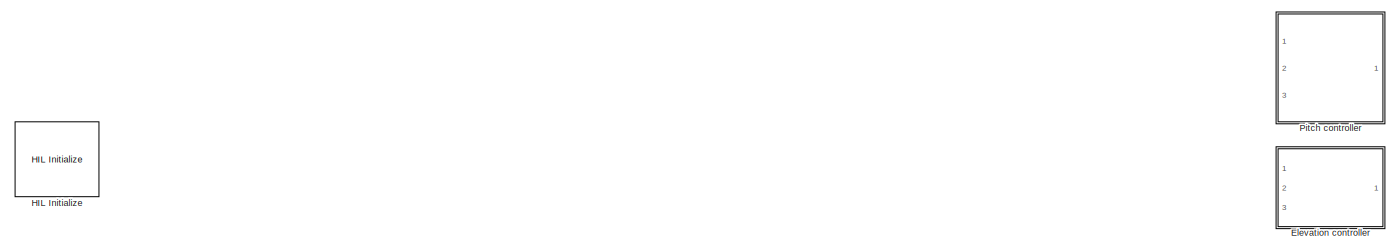
[diagram: root canvas - part 1/3, top right region]
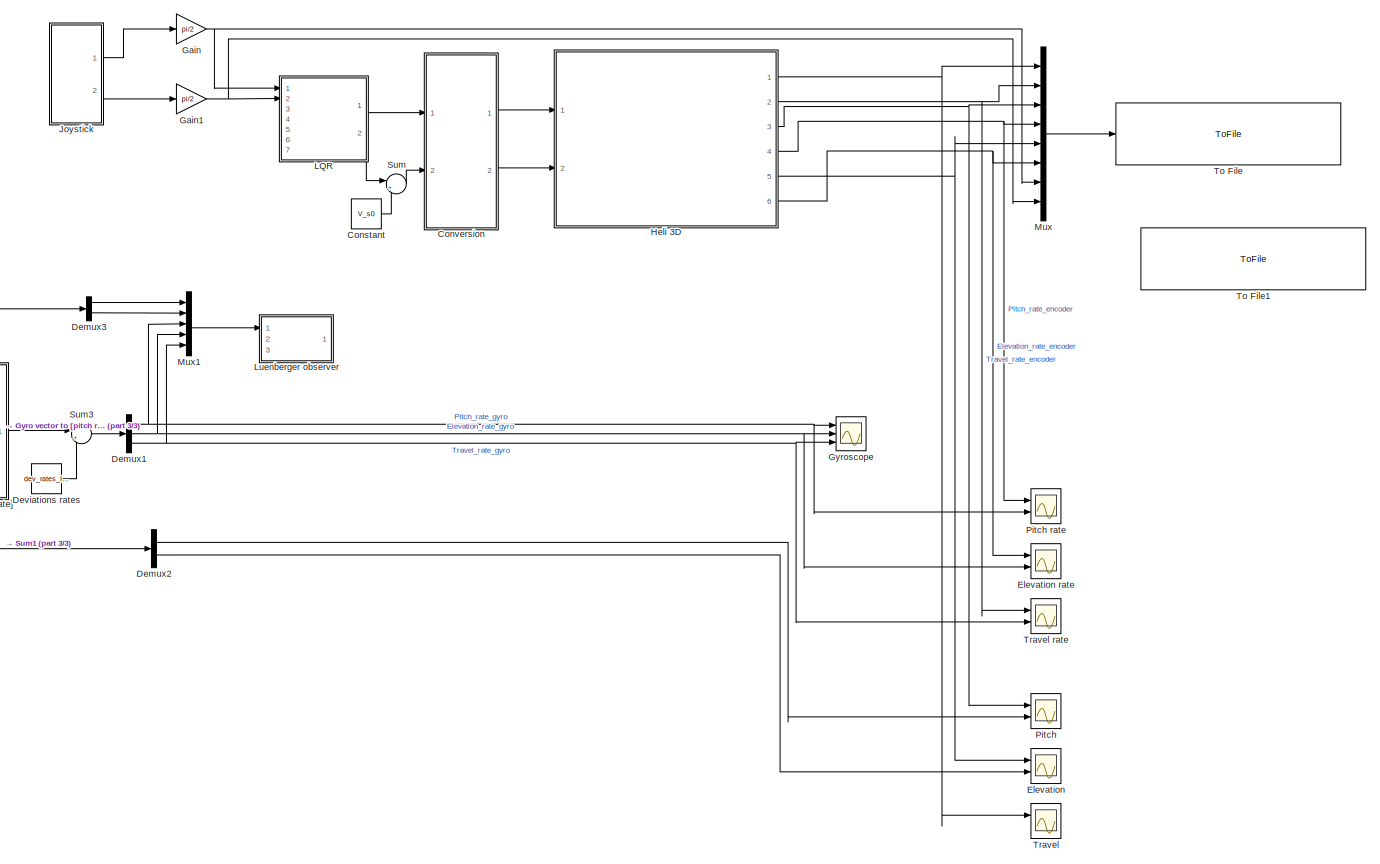
[diagram: root canvas - part 2/3, central region]
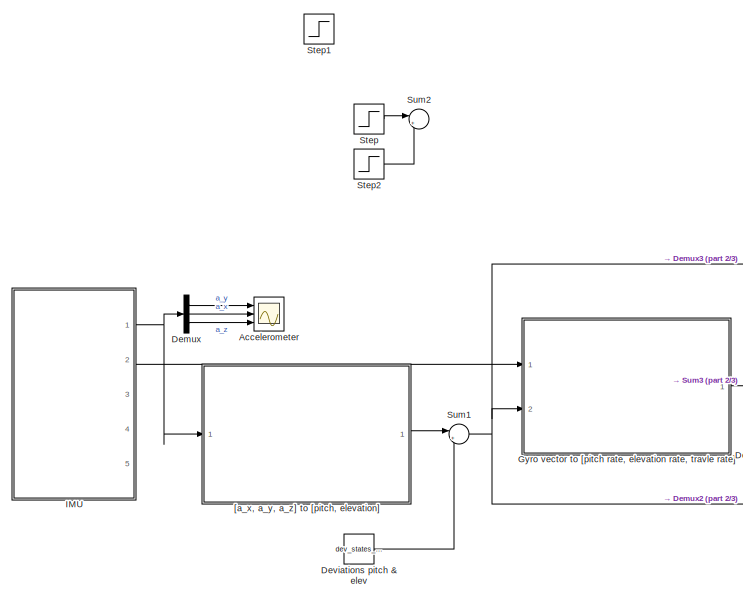
[diagram: root canvas - part 3/3, middle left region]
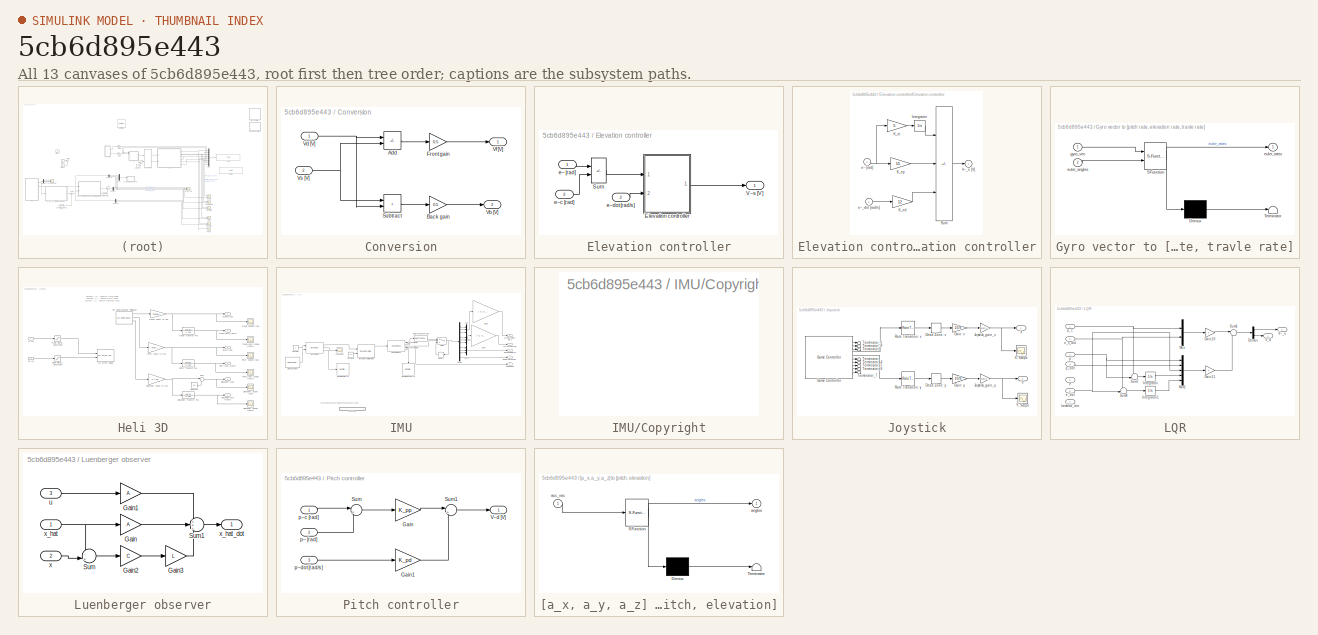
[diagram: thumbnail index - all 13 canvases of the model, root first then tree order]
MODEL slx_5cb6d895e443
KIND model
CONFIG AbsTol = auto
CONFIG EnableMultiTasking = on
CONFIG FixedStep = 0.002
CONFIG MaxStep = auto
CONFIG MinStep = auto
CONFIG PostLoadFcn = qc_set_target_type(getConfigSet(bdroot, 'QUARC Default Target Configuration'));
CONFIG RelTol = 1e-3
CONFIG SampleTimeConstraint = Unconstrained
CONFIG SolverName = ode1
CONFIG StartTime = 0.0
CONFIG StopTime = inf
BLOCK [Scope] Accelerometer
  Floating = off
  NumInputPorts = 3
  Ports = [3]
  ScopeSpecificationString = Simulink.scopes.TimeScopeBlockCfg('CurrentConfiguration', extmgr.ConfigurationSet(extmgr.Configuration('Core','General UI',true),extmgr.Configuration('Core','Source UI',true),extmgr.Configuration('Sources','WiredSimulink',true,'DataLoggingVariableName','ScopeData2'),extmgr.Configuration('Visuals','Time Domain',true,'TimeAxisLabels','All','SerializedDisplays',{struct('MinYLimReal','-6','MaxYLimReal...<+2778ch>
BLOCK [Constant] Constant
  Value = V_s0
BLOCK [SubSystem] Conversion
  Ports = [2, 2]
  RequestExecContextInheritance = off
BLOCK [Sum] Conversion/Add
  IconShape = rectangular
  Inputs = -+
  Ports = [2, 1]
BLOCK [Gain] Conversion/Back gain
  Gain = 0.5
BLOCK [Gain] Conversion/Front gain
  Gain = 0.5
BLOCK [Sum] Conversion/Subtract
  IconShape = rectangular
  Ports = [2, 1]
BLOCK [Outport] Conversion/Vb [V]
  Port = 2
BLOCK [Inport] Conversion/Vd [V]
BLOCK [Outport] Conversion/Vf [V]
BLOCK [Inport] Conversion/Vs [V]
  Port = 2
BLOCK [Demux] Demux
  Outputs = 3
  Ports = [1, 3]
BLOCK [Demux] Demux1
  Outputs = 3
  Ports = [1, 3]
BLOCK [Demux] Demux2
  Outputs = 2
  Ports = [1, 2]
BLOCK [Demux] Demux3
  Outputs = 2
  Ports = [1, 2]
BLOCK [Constant] Deviations pitch & elev
  Value = dev_states_IMU
  VectorParams1D = off
BLOCK [Constant] Deviations rates
  Value = dev_rates_IMU
  VectorParams1D = off
BLOCK [Scope] Elevation
  Floating = off
  NumInputPorts = 2
  Ports = [2]
  ScopeSpecificationString = Simulink.scopes.TimeScopeBlockCfg('CurrentConfiguration', extmgr.ConfigurationSet(extmgr.Configuration('Core','General UI',true),extmgr.Configuration('Core','Source UI',true),extmgr.Configuration('Sources','WiredSimulink',true,'DataLoggingVariableName','ScopeData3'),extmgr.Configuration('Visuals','Time Domain',true,'TimeAxisLabels','All','SerializedDisplays',{struct('MinYLimReal','-0.6','MaxYLimRe...<+1533ch>
BLOCK [SubSystem] Elevation controller
  Ports = [3, 1]
  RequestExecContextInheritance = off
BLOCK [SubSystem] Elevation controller/Elevation controller
  Ports = [2, 1]
  RequestExecContextInheritance = off
BLOCK [Integrator] Elevation controller/Elevation controller/Integrator
  LimitOutput = on
  Ports = [1, 1]
BLOCK [Gain] Elevation controller/Elevation controller/K_ed
  Gain = 12
  OutDataTypeStr = Inherit: Same as input
  ParamDataTypeStr = Inherit: Same as input
  SaturateOnIntegerOverflow = on
BLOCK [Gain] Elevation controller/Elevation controller/K_ei
  Gain = 5
  OutDataTypeStr = Inherit: Same as input
  ParamDataTypeStr = Inherit: Same as input
  SaturateOnIntegerOverflow = on
BLOCK [Gain] Elevation controller/Elevation controller/K_ep
  Gain = 15
  OutDataTypeStr = Inherit: Same as input
  ParamDataTypeStr = Inherit: Same as input
  SaturateOnIntegerOverflow = on
BLOCK [Sum] Elevation controller/Elevation controller/Sum
  IconShape = rectangular
  InputSameDT = on
  Inputs = ++-
  OutDataTypeStr = Inherit: Same as first input
  Ports = [3, 1]
  SaturateOnIntegerOverflow = on
BLOCK [Outport] Elevation controller/Elevation controller/V~_s [V]
  InitialOutput = 0
BLOCK [Inport] Elevation controller/Elevation controller/e~ [rad]
BLOCK [Inport] Elevation controller/Elevation controller/e~_dot [rad//s]
  Port = 2
BLOCK [Sum] Elevation controller/Sum
  IconShape = rectangular
  InputSameDT = on
  Inputs = -+
  OutDataTypeStr = Inherit: Same as first input
  Ports = [2, 1]
  SaturateOnIntegerOverflow = on
BLOCK [Outport] Elevation controller/V~s [V]
  InitialOutput = 0
BLOCK [Inport] Elevation controller/e~ [rad]
BLOCK [Inport] Elevation controller/e~c [rad]
  Port = 3
BLOCK [Inport] Elevation controller/e~dot [rad//s]
  Port = 2
BLOCK [Scope] Elevation rate
  Floating = off
  NumInputPorts = 2
  Ports = [2]
  ScopeSpecificationString = Simulink.scopes.TimeScopeBlockCfg('CurrentConfiguration', extmgr.ConfigurationSet(extmgr.Configuration('Core','General UI',true),extmgr.Configuration('Core','Source UI',true),extmgr.Configuration('Sources','WiredSimulink',true,'DataLoggingVariableName','ScopeData5'),extmgr.Configuration('Visuals','Time Domain',true,'TimeAxisLabels','All','SerializedDisplays',{struct('MinYLimReal','-0.1','MaxYLimRe...<+1581ch>
BLOCK [Gain] Gain
  Gain = pi/2
BLOCK [Gain] Gain1
  Gain = pi/2
BLOCK [SubSystem] Gyro vector to [pitch rate, elevation rate, travle rate]
  ErrorFcn = Stateflow.Translate.translate
  PermitHierarchicalResolution = ExplicitOnly
  Ports = [2, 1]
  RequestExecContextInheritance = off
  SFBlockType = MATLAB Function
  TreatAsAtomicUnit = on
BLOCK [Demux] Gyro vector to [pitch rate, elevation rate, travle rate]/ Demux 
  Outputs = 1
  Ports = [1, 1]
BLOCK [S-Function] Gyro vector to [pitch rate, elevation rate, travle rate]/ SFunction 
  EnableBusSupport = on
  FunctionName = sf_sfun
  PortCounts = [2 2]
  Ports = [2, 2]
  SFcnIsStateOwnerBlock = off
  SFunctionDeploymentMode = off
  Tag = Stateflow S-Function 2
BLOCK [Terminator] Gyro vector to [pitch rate, elevation rate, travle rate]/ Terminator 
BLOCK [Inport] Gyro vector to [pitch rate, elevation rate, travle rate]/euler_angles
  Port = 2
BLOCK [Outport] Gyro vector to [pitch rate, elevation rate, travle rate]/euler_rates
BLOCK [Inport] Gyro vector to [pitch rate, elevation rate, travle rate]/gyro_vec
BLOCK [Scope] Gyroscope
  Floating = off
  NumInputPorts = 3
  Ports = [3]
  ScopeSpecificationString = Simulink.scopes.TimeScopeBlockCfg('CurrentConfiguration', extmgr.ConfigurationSet(extmgr.Configuration('Core','General UI',true),extmgr.Configuration('Core','Source UI',true),extmgr.Configuration('Sources','WiredSimulink',true,'DataLoggingVariableName','ScopeData1'),extmgr.Configuration('Visuals','Time Domain',true,'TimeAxisLabels','All','SerializedDisplays',{struct('MinYLimReal','-2.66315','MaxYL...<+2910ch>
BLOCK [Reference] HIL Initialize  REF=quarc_library/Data Acquisition/Generic/Configuration/HIL Initialize
  AttributesFormatString = %<object_name> (%<board_type>-%<board_number>)
  Ports = []
  Priority = -99
  SourceBlock = quarc_library/Data Acquisition/Generic/Configuration/HIL Initialize
  SourceProductName = QUARC Targets
  SourceType = HIL Initialize
  UserDataPersistent = on
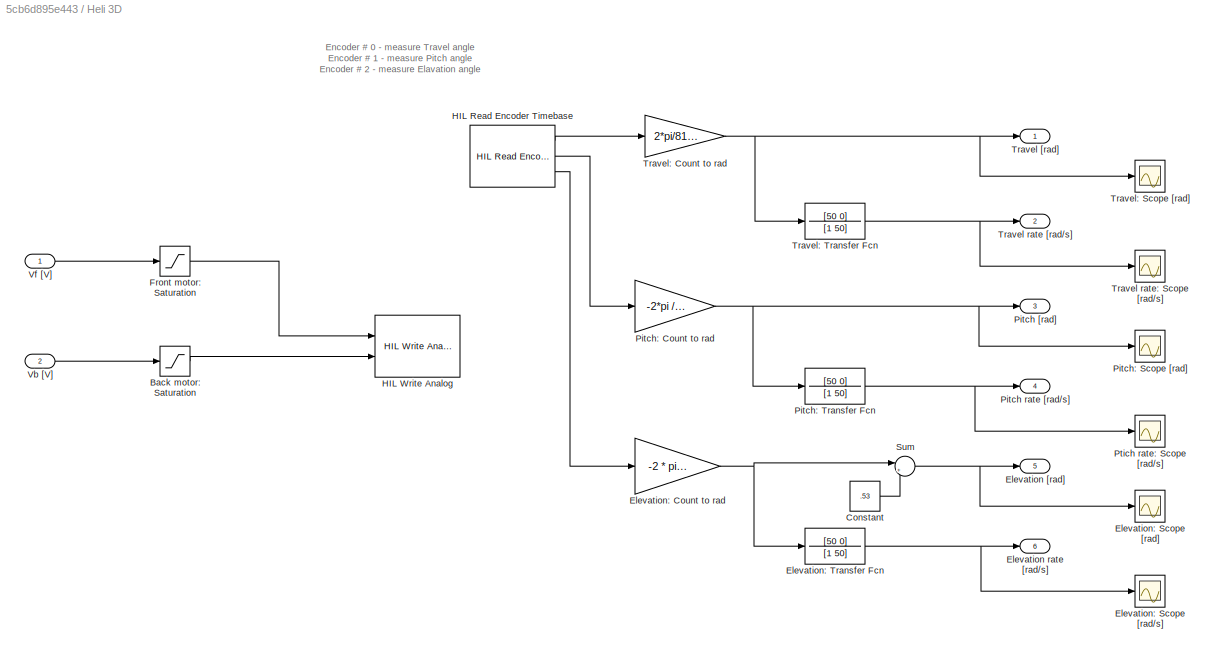
BLOCK [SubSystem] Heli 3D
  Ports = [2, 6]
  RequestExecContextInheritance = off
BLOCK [Saturate] Heli 3D/Back motor: Saturation
  LowerLimit = -5
  UpperLimit = 5
BLOCK [Constant] Heli 3D/Constant
  Value = .53
BLOCK [Outport] Heli 3D/Elevation [rad]
  Port = 5
BLOCK [Outport] Heli 3D/Elevation rate [rad//s]
  Port = 6
BLOCK [Gain] Heli 3D/Elevation: Count to rad
  Gain = -2 * pi /4096
BLOCK [Scope] Heli 3D/Elevation: Scope [rad//s]
  Floating = off
  NumInputPorts = 1
  Ports = [1]
  ScopeSpecificationString = C++SS(StrPVP('Location','[1236, 673, 1560, 912]'),StrPVP('Open','off'),MxPVP('AxesTitles',54,'struct(''axes1'',''%<SignalLabel>'')'),MxPVP('ScopeGraphics',57,'struct(''FigureColor'',''[0.5 0.5 0.5]'',''AxesColor'',''[0 0 0]'',''AxesTickColor'',''[1 1 1]'',''LineColors'',''[1 1 0;1 0 1;0 1 1;1 0 0;0 1 0;0 0 1]'',''LineStyles'',''-|-|-|-|-|-'',''LineWidths'',''[0.5 0.5 0.5 0.5 0.5 0.5]'',''MarkerSty...<+342ch>
BLOCK [Scope] Heli 3D/Elevation: Scope [rad]
  Floating = off
  NumInputPorts = 1
  Ports = [1]
  ScopeSpecificationString = Simulink.scopes.TimeScopeBlockCfg('CurrentConfiguration', extmgr.ConfigurationSet(extmgr.Configuration('Core','General UI',true),extmgr.Configuration('Core','Source UI',true),extmgr.Configuration('Sources','WiredSimulink',true,'DataLoggingVariableName','ScopeData12','DataLoggingSaveFormat','StructureWithTime','DataLoggingLimitDataPoints',true,'DataLoggingDecimation','1','DataLoggingDecimateData',t...<+1749ch>
BLOCK [TransferFcn] Heli 3D/Elevation: Transfer Fcn
  Denominator = [1 50]
  Numerator = [50 0]
BLOCK [Saturate] Heli 3D/Front motor: Saturation
  LowerLimit = -5
  UpperLimit = 5
BLOCK [Reference] Heli 3D/HIL Read Encoder Timebase  REF=quarc_library/Data Acquisition/Generic/Timebases/HIL Read Encoder
Timebase
  AttributesFormatString = (%<object_name>)
  Ports = [0, 3]
  SourceBlock = quarc_library/Data Acquisition/Generic/Timebases/HIL Read Encoder\nTimebase
  SourceProductName = QUARC Targets
  SourceType = HIL Read Encoder Timebase
  UserDataPersistent = on
BLOCK [Reference] Heli 3D/HIL Write Analog  REF=quarc_library/Data Acquisition/Generic/Immediate I//O/HIL Write Analog
  AttributesFormatString = (%<object_name>)
  Ports = [2]
  SourceBlock = quarc_library/Data Acquisition/Generic/Immediate I//O/HIL Write Analog
  SourceProductName = QUARC Targets
  SourceType = HIL Write Analog
  UserDataPersistent = on
BLOCK [Outport] Heli 3D/Pitch [rad]
  Port = 3
BLOCK [Outport] Heli 3D/Pitch rate [rad//s]
  Port = 4
BLOCK [Gain] Heli 3D/Pitch: Count to rad
  Gain = -2*pi /4096
  NameLocation = top
BLOCK [Scope] Heli 3D/Pitch: Scope [rad]
  Floating = off
  NumInputPorts = 1
  Ports = [1]
  ScopeSpecificationString = Simulink.scopes.TimeScopeBlockCfg('CurrentConfiguration', extmgr.ConfigurationSet(extmgr.Configuration('Core','General UI',true),extmgr.Configuration('Core','Source UI',true),extmgr.Configuration('Sources','WiredSimulink',true,'DataLoggingVariableName','ScopeData10','DataLoggingSaveFormat','StructureWithTime','DataLoggingLimitDataPoints',true,'DataLoggingDecimation','1','DataLoggingDecimateData',t...<+1769ch>
BLOCK [TransferFcn] Heli 3D/Pitch: Transfer Fcn
  Denominator = [1 50]
  Numerator = [50 0]
BLOCK [Scope] Heli 3D/Ptich rate: Scope [rad//s]
  Floating = off
  NumInputPorts = 1
  Ports = [1]
  ScopeSpecificationString = C++SS(StrPVP('Location','[1236, 673, 1560, 912]'),StrPVP('Open','off'),MxPVP('AxesTitles',54,'struct(''axes1'',''%<SignalLabel>'')'),MxPVP('ScopeGraphics',57,'struct(''FigureColor'',''[0.5 0.5 0.5]'',''AxesColor'',''[0 0 0]'',''AxesTickColor'',''[1 1 1]'',''LineColors'',''[1 1 0;1 0 1;0 1 1;1 0 0;0 1 0;0 0 1]'',''LineStyles'',''-|-|-|-|-|-'',''LineWidths'',''[0.5 0.5 0.5 0.5 0.5 0.5]'',''MarkerSty...<+342ch>
BLOCK [Sum] Heli 3D/Sum
  Inputs = |+-
  Ports = [2, 1]
BLOCK [Outport] Heli 3D/Travel [rad]
BLOCK [Outport] Heli 3D/Travel rate [rad//s]
  Port = 2
BLOCK [Scope] Heli 3D/Travel rate: Scope [rad//s]
  Floating = off
  NumInputPorts = 1
  Ports = [1]
  ScopeSpecificationString = Simulink.scopes.TimeScopeBlockCfg('CurrentConfiguration', extmgr.ConfigurationSet(extmgr.Configuration('Core','General UI',true),extmgr.Configuration('Core','Source UI',true),extmgr.Configuration('Sources','WiredSimulink',true,'DataLoggingVariableName','ScopeData9','DataLoggingSaveFormat','StructureWithTime','DataLoggingLimitDataPoints',true,'DataLoggingDecimation','1','DataLoggingDecimateData',tr...<+1694ch>
BLOCK [Gain] Heli 3D/Travel: Count to rad
  Gain = 2*pi/8192
  NameLocation = top
BLOCK [Scope] Heli 3D/Travel: Scope [rad]
  Floating = off
  NumInputPorts = 1
  Ports = [1]
  ScopeSpecificationString = Simulink.scopes.TimeScopeBlockCfg('CurrentConfiguration', extmgr.ConfigurationSet(extmgr.Configuration('Core','General UI',true),extmgr.Configuration('Core','Source UI',true),extmgr.Configuration('Sources','WiredSimulink',true,'DataLoggingVariableName','ScopeData8','DataLoggingSaveFormat','StructureWithTime','DataLoggingLimitDataPoints',true,'DataLoggingDecimation','1','DataLoggingDecimateData',tr...<+1698ch>
BLOCK [TransferFcn] Heli 3D/Travel: Transfer Fcn
  Denominator = [1 50]
  Numerator = [50 0]
BLOCK [Inport] Heli 3D/Vb [V]
  Port = 2
BLOCK [Inport] Heli 3D/Vf [V]
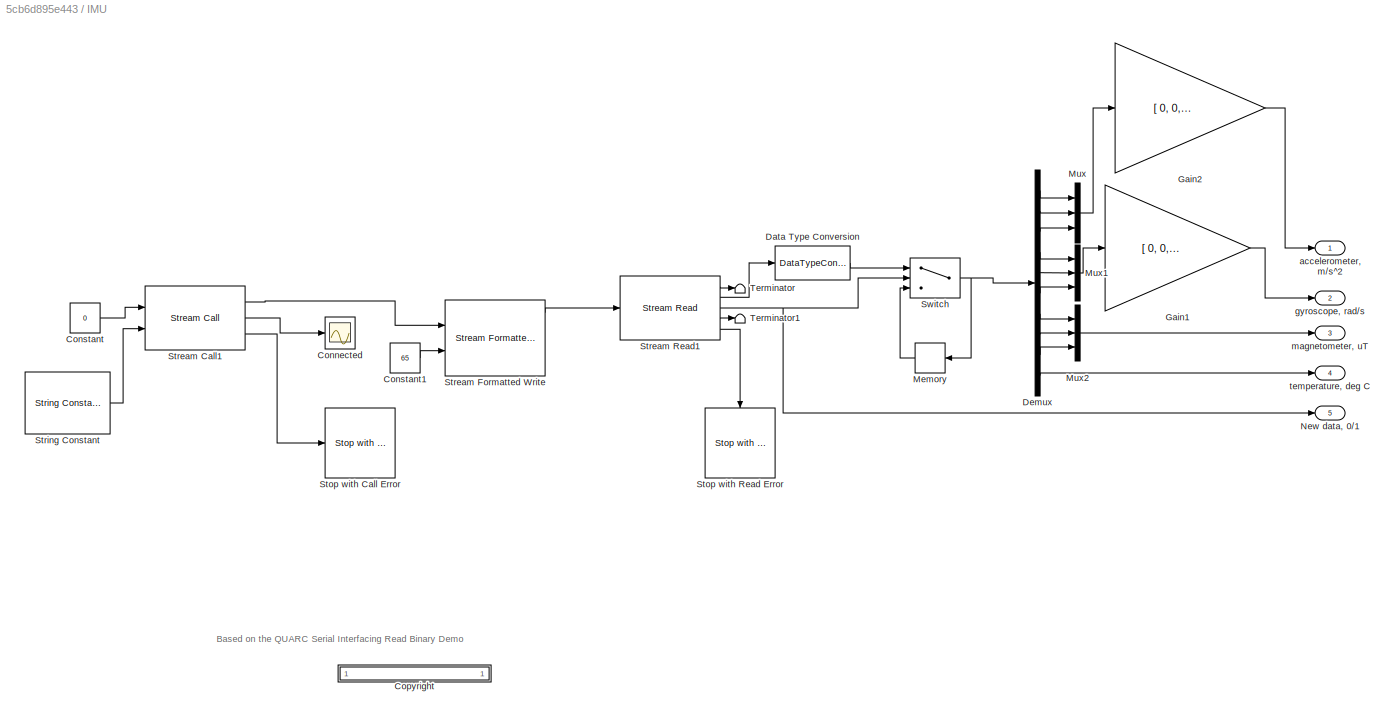
BLOCK [SubSystem] IMU
  Ports = [0, 5]
  RequestExecContextInheritance = off
BLOCK [Scope] IMU/Connected
  Floating = off
  NumInputPorts = 1
  Ports = [1]
  ScopeSpecificationString = Simulink.scopes.TimeScopeBlockCfg('CurrentConfiguration', extmgr.ConfigurationSet(extmgr.Configuration('Core','General UI',true),extmgr.Configuration('Core','Source UI',true),extmgr.Configuration('Sources','WiredSimulink',true,'DataLoggingSaveFormat','StructureWithTime','DataLoggingLimitDataPoints',true,'DataLoggingDecimation','1','DataLoggingDecimateData',true,'DataLoggingVariableName','ScopeData...<+909ch>
BLOCK [Constant] IMU/Constant
  Value = 0
BLOCK [Constant] IMU/Constant1
  Value = 65
BLOCK [SubSystem] IMU/<copyright redacted>
  OpenFcn = web('http://www.quanser.com/');
  Permissions = NoReadOrWrite
  PermitHierarchicalResolution = None
  Ports = []
  RequestExecContextInheritance = off
BLOCK [DataTypeConversion] IMU/Data Type Conversion
  OutDataTypeStr = double
  RndMeth = Floor
  SaturateOnIntegerOverflow = off
BLOCK [Demux] IMU/Demux
  Outputs = 10
  Ports = [1, 10]
BLOCK [Gain] IMU/Gain1
  Gain = [ 0, 0, 1; 0, 1, 0; -1, 0, 0]
  Multiplication = Matrix(K*u) (u vector)
BLOCK [Gain] IMU/Gain2
  Gain = [ 0, 0, 1; 0, 1, 0; -1, 0, 0]
  Multiplication = Matrix(K*u) (u vector)
BLOCK [Memory] IMU/Memory
  InitialCondition = [0 0 0 0 0 0 0 0 0 0]
  NameLocation = top
BLOCK [Mux] IMU/Mux
  DisplayOption = bar
  Inputs = 3
  Ports = [3, 1]
BLOCK [Mux] IMU/Mux1
  DisplayOption = bar
  Inputs = 3
  Ports = [3, 1]
BLOCK [Mux] IMU/Mux2
  DisplayOption = bar
  Inputs = 3
  Ports = [3, 1]
BLOCK [Outport] IMU/New data, 0//1
  Port = 5
BLOCK [Reference] IMU/Stop with Call Error  REF=quarc_library/Sinks/Error Handling/Stop with Error
  Ports = [1]
  SourceBlock = quarc_library/Sinks/Error Handling/Stop with Error
  SourceProductName = QUARC Targets
  SourceType = Stop with Error
BLOCK [Reference] IMU/Stop with Read Error  REF=quarc_library/Sinks/Error Handling/Stop with Error
  NameLocation = left
  Ports = [1]
  SourceBlock = quarc_library/Sinks/Error Handling/Stop with Error
  SourceProductName = QUARC Targets
  SourceType = Stop with Error
BLOCK [Reference] IMU/Stream Call1  REF=quarc_library/Communications/Intermediate/Stream Call
  Ports = [2, 3]
  SourceBlock = quarc_library/Communications/Intermediate/Stream Call
  SourceProductName = QUARC Targets
  SourceType = Stream Call
BLOCK [Reference] IMU/Stream Formatted Write  REF=quarc_library/Communications/Intermediate/Stream Formatted
Write
  Ports = [2, 5]
  SourceBlock = quarc_library/Communications/Intermediate/Stream Formatted\nWrite
  SourceProductName = QUARC Targets
  SourceType = Stream Formatted Write
BLOCK [Reference] IMU/Stream Read1  REF=quarc_library/Communications/Intermediate/Stream Read
  Ports = [1, 5]
  SourceBlock = quarc_library/Communications/Intermediate/Stream Read
  SourceProductName = QUARC Targets
  SourceType = Stream Read
BLOCK [Reference] IMU/String Constant  REF=quarc_library/Strings/String Constant
  AttributesFormatString = "serial://IMU:4?baud=115200,word=8,parity=none,stop=1"
  Ports = [0, 1]
  SourceBlock = quarc_library/Strings/String Constant
  SourceProductName = QUARC Targets
  SourceType = String Constant
BLOCK [Switch] IMU/Switch
  Criteria = u2 > Threshold
  InputSameDT = off
  SaturateOnIntegerOverflow = off
BLOCK [Terminator] IMU/Terminator
BLOCK [Terminator] IMU/Terminator1
BLOCK [Outport] IMU/accelerometer, m//s^2
BLOCK [Outport] IMU/gyroscope, rad//s
  Port = 2
BLOCK [Outport] IMU/magnetometer, uT
  Port = 3
BLOCK [Outport] IMU/temperature, deg C
  Port = 4
BLOCK [SubSystem] Joystick
  Ports = [0, 2]
  RequestExecContextInheritance = off
BLOCK [DeadZone] Joystick/Dead Zone: x
  LowerValue = -0.1
  UpperValue = 0.1
BLOCK [DeadZone] Joystick/Dead Zone: y
  LowerValue = -0.1
  UpperValue = 0.1
BLOCK [Gain] Joystick/Gain: x
  Gain = 10/9
BLOCK [Gain] Joystick/Gain: y
  Gain = 10/9
BLOCK [Reference] Joystick/Game Controller  REF=quarc_library/Devices/Peripherals/Target/Game Controller
  Ports = [0, 10]
  SourceBlock = quarc_library/Devices/Peripherals/Target/Game Controller
  SourceProductName = QUARC Targets
  SourceType = Game Controller
BLOCK [Gain] Joystick/Joystick_gain_x
  Gain = Joystick_gain_x
BLOCK [Gain] Joystick/Joystick_gain_y
  Gain = Joystick_gain_y
BLOCK [RateTransition] Joystick/Rate Transition: x
BLOCK [RateTransition] Joystick/Rate Transition: y
BLOCK [Terminator] Joystick/Terminator
BLOCK [Terminator] Joystick/Terminator1
BLOCK [Terminator] Joystick/Terminator_1
BLOCK [Terminator] Joystick/Terminator_2
BLOCK [Terminator] Joystick/Terminator_4
BLOCK [Terminator] Joystick/Terminator_5
BLOCK [Terminator] Joystick/Terminator_6
BLOCK [Terminator] Joystick/Terminator_7
BLOCK [Outport] Joystick/X
BLOCK [Scope] Joystick/X: Scope
  Floating = off
  NumInputPorts = 1
  Ports = [1]
  ScopeSpecificationString = C++SS(StrPVP('Location','[894, 60, 1218, 301]'),StrPVP('Open','off'),StrPVP('ZoomMode','yonly'),MxPVP('AxesTitles',54,'struct(''axes1'',''%<SignalLabel>'')'),MxPVP('ScopeGraphics',57,'struct(''FigureColor'',''[0.5 0.5 0.5]'',''AxesColor'',''[0 0 0]'',''AxesTickColor'',''[1 1 1]'',''LineColors'',''[1 1 0;1 0 1;0 1 1;1 0 0;0 1 0;0 0 1]'',''LineStyles'',''-|-|-|-|-|-'',''LineWidths'',''[0.5 0.5 0.5 0...<+364ch>
BLOCK [Outport] Joystick/Y
  Port = 2
BLOCK [Scope] Joystick/Y: Scope
  Floating = off
  NumInputPorts = 1
  Ports = [1]
  ScopeSpecificationString = C++SS(StrPVP('Location','[894, 368, 1218, 604]'),StrPVP('Open','off'),MxPVP('AxesTitles',54,'struct(''axes1'',''%<SignalLabel>'')'),MxPVP('ScopeGraphics',57,'struct(''FigureColor'',''[0.5 0.5 0.5]'',''AxesColor'',''[0 0 0]'',''AxesTickColor'',''[1 1 1]'',''LineColors'',''[1 1 0;1 0 1;0 1 1;1 0 0;0 1 0;0 0 1]'',''LineStyles'',''-|-|-|-|-|-'',''LineWidths'',''[0.5 0.5 0.5 0.5 0.5 0.5]'',''MarkerStyl...<+340ch>
BLOCK [SubSystem] LQR
  Ports = [7, 2]
  RequestExecContextInheritance = off
BLOCK [Demux] LQR/Demux
  Outputs = 2
  Ports = [1, 2]
BLOCK [Gain] LQR/Gain10
  Gain = F
  Multiplication = Matrix(K*u)
BLOCK [Gain] LQR/Gain11
  Gain = K
  Multiplication = Matrix(K*u)
BLOCK [Integrator] LQR/Integrator
  Ports = [1, 1]
BLOCK [Integrator] LQR/Integrator1
  Ports = [1, 1]
BLOCK [Mux] LQR/Mux
  DisplayOption = bar
  Inputs = 2
  Ports = [2, 1]
BLOCK [Mux] LQR/Mux1
  DisplayOption = bar
  Inputs = 5
  Ports = [5, 1]
BLOCK [Sum] LQR/Sum6
  Inputs = |+-
  Ports = [2, 1]
BLOCK [Sum] LQR/Sum7
  Inputs = +-|
  Ports = [2, 1]
BLOCK [Sum] LQR/Sum8
  Inputs = +-|
  Ports = [2, 1]
BLOCK [Outport] LQR/V_d
BLOCK [Outport] LQR/V~_s
  Port = 2
BLOCK [Inport] LQR/e
  Port = 5
BLOCK [Inport] LQR/e_c_dot
  Port = 2
BLOCK [Inport] LQR/e_dot
  Port = 6
BLOCK [Inport] LQR/lambda_dot
  Port = 7
BLOCK [Inport] LQR/p
  Port = 3
BLOCK [Inport] LQR/p_c
BLOCK [Inport] LQR/p_dot
  Port = 4
BLOCK [SubSystem] Luenberger observer
  Ports = [3, 1]
  RequestExecContextInheritance = off
BLOCK [Gain] Luenberger observer/Gain
  Gain = A
  Multiplication = Matrix(K*u)
BLOCK [Gain] Luenberger observer/Gain1
  Gain = A
  Multiplication = Matrix(K*u)
BLOCK [Gain] Luenberger observer/Gain2
  Gain = C
  Multiplication = Matrix(K*u)
BLOCK [Gain] Luenberger observer/Gain3
  Gain = L
  Multiplication = Matrix(K*u)
BLOCK [Sum] Luenberger observer/Sum
  Inputs = -+|
  Ports = [2, 1]
BLOCK [Sum] Luenberger observer/Sum1
  Inputs = +++
  Ports = [3, 1]
BLOCK [Inport] Luenberger observer/u
  Port = 3
BLOCK [Inport] Luenberger observer/x
  Port = 2
BLOCK [Inport] Luenberger observer/x_hat
BLOCK [Outport] Luenberger observer/x_hat_dot
BLOCK [Mux] Mux
  DisplayOption = bar
  Inputs = 8
  Ports = [8, 1]
BLOCK [Mux] Mux1
  DisplayOption = bar
  Inputs = 5
  Ports = [5, 1]
BLOCK [Scope] Pitch
  Floating = off
  NumInputPorts = 2
  Ports = [2]
  ScopeSpecificationString = Simulink.scopes.TimeScopeBlockCfg('CurrentConfiguration', extmgr.ConfigurationSet(extmgr.Configuration('Core','General UI',true),extmgr.Configuration('Core','Source UI',true),extmgr.Configuration('Sources','WiredSimulink',true,'DataLoggingVariableName','ScopeData2'),extmgr.Configuration('Visuals','Time Domain',true,'TimeAxisLabels','All','SerializedDisplays',{struct('MinYLimReal','-1','MaxYLimReal...<+1523ch>
BLOCK [SubSystem] Pitch controller
  Ports = [3, 1]
  RequestExecContextInheritance = off
BLOCK [Gain] Pitch controller/Gain
  Gain = K_pp
BLOCK [Gain] Pitch controller/Gain1
  Gain = K_pd
BLOCK [Sum] Pitch controller/Sum
  Inputs = |+-
  Ports = [2, 1]
BLOCK [Sum] Pitch controller/Sum1
  Inputs = |+-
  Ports = [2, 1]
BLOCK [Outport] Pitch controller/V~d [V]
  InitialOutput = 0
BLOCK [Inport] Pitch controller/p~ [rad]
  Port = 2
BLOCK [Inport] Pitch controller/p~c [rad]
BLOCK [Inport] Pitch controller/p~dot [rad//s]
  Port = 3
BLOCK [Scope] Pitch rate
  Floating = off
  NumInputPorts = 2
  Ports = [2]
  ScopeSpecificationString = Simulink.scopes.TimeScopeBlockCfg('CurrentConfiguration', extmgr.ConfigurationSet(extmgr.Configuration('Core','General UI',true),extmgr.Configuration('Core','Source UI',true),extmgr.Configuration('Sources','WiredSimulink',true,'DataLoggingVariableName','ScopeData6'),extmgr.Configuration('Visuals','Time Domain',true,'TimeAxisLabels','All','SerializedDisplays',{struct('MinYLimReal','-0.1','MaxYLimRe...<+1547ch>
BLOCK [Step] Step
  After = 0.1
  SampleTime = 0
  Time = 10
BLOCK [Step] Step1
  After = -1/4
  SampleTime = 0
  Time = 40
BLOCK [Step] Step2
  After = -0.1
  SampleTime = 0
  Time = 20
BLOCK [Sum] Sum
  Inputs = |++
  Ports = [2, 1]
BLOCK [Sum] Sum1
  Inputs = |++
  Ports = [2, 1]
BLOCK [Sum] Sum2
  Inputs = |++
  Ports = [2, 1]
BLOCK [Sum] Sum3
  Inputs = |++
  Ports = [2, 1]
BLOCK [ToFile] To File
  Filename = Lab_3_case_files\delete.mat
  MatrixName = data
  Ports = [1]
BLOCK [ToFile] To File1
  Filename = Lab_3_case_files\delete1.mat
  MatrixName = data
  Ports = [1]
BLOCK [Scope] Travel
  Floating = off
  NumInputPorts = 2
  Ports = [2]
  ScopeSpecificationString = Simulink.scopes.TimeScopeBlockCfg('CurrentConfiguration', extmgr.ConfigurationSet(extmgr.Configuration('Core','General UI',true),extmgr.Configuration('Core','Source UI',true),extmgr.Configuration('Sources','WiredSimulink',true,'DataLoggingVariableName','ScopeData4'),extmgr.Configuration('Visuals','Time Domain',true,'TimeAxisLabels','All','SerializedDisplays',{struct('MinYLimReal','-1','MaxYLimReal...<+1523ch>
BLOCK [Scope] Travel rate
  Floating = off
  NumInputPorts = 2
  Ports = [2]
  ScopeSpecificationString = Simulink.scopes.TimeScopeBlockCfg('CurrentConfiguration', extmgr.ConfigurationSet(extmgr.Configuration('Core','General UI',true),extmgr.Configuration('Core','Source UI',true),extmgr.Configuration('Sources','WiredSimulink',true,'DataLoggingVariableName','ScopeData7'),extmgr.Configuration('Visuals','Time Domain',true,'TimeAxisLabels','All','SerializedDisplays',{struct('MinYLimReal','-0.1','MaxYLimRe...<+1574ch>
BLOCK [SubSystem] [a_x, a_y, a_z]  to [pitch, elevation]
  ErrorFcn = Stateflow.Translate.translate
  PermitHierarchicalResolution = ExplicitOnly
  Ports = [1, 1]
  RequestExecContextInheritance = off
  SFBlockType = MATLAB Function
  TreatAsAtomicUnit = on
BLOCK [Demux] [a_x, a_y, a_z]  to [pitch, elevation]/ Demux 
  Outputs = 1
  Ports = [1, 1]
BLOCK [S-Function] [a_x, a_y, a_z]  to [pitch, elevation]/ SFunction 
  EnableBusSupport = on
  FunctionName = sf_sfun
  PortCounts = [1 2]
  Ports = [1, 2]
  SFcnIsStateOwnerBlock = off
  SFunctionDeploymentMode = off
  Tag = Stateflow S-Function 1
BLOCK [Terminator] [a_x, a_y, a_z]  to [pitch, elevation]/ Terminator 
BLOCK [Inport] [a_x, a_y, a_z]  to [pitch, elevation]/acc_vec
BLOCK [Outport] [a_x, a_y, a_z]  to [pitch, elevation]/angles
ANNOTATION Heli 3D: Encoder # 0 - measure Travel angle Encoder # 1 - measure Pitch angle Encoder # 2 - measure Elavation angle
ANNOTATION IMU: Based on the QUARC Serial Interfacing Read Binary Demo
LINE Constant:1 -> Sum:2
LINE Conversion/Add:1 -> Conversion/Front gain:1
LINE Conversion/Back gain:1 -> Conversion/Vb [V]:1
LINE Conversion/Front gain:1 -> Conversion/Vf [V]:1
LINE Conversion/Subtract:1 -> Conversion/Back gain:1
NET Conversion/Vd [V]:1 -> Conversion/Add:1, Conversion/Subtract:2
NET Conversion/Vs [V]:1 -> Conversion/Add:2, Conversion/Subtract:1
LINE Conversion:1 -> Heli 3D:1
LINE Conversion:2 -> Heli 3D:2
NET Demux1:1 -> Gyroscope:1, Mux1:3, Pitch rate:2
NET Demux1:2 -> Elevation rate:2, Gyroscope:2, Mux1:4
NET Demux1:3 -> Gyroscope:3, Mux1:5, Travel rate:2
LINE Demux2:1 -> Pitch:2
LINE Demux2:2 -> Elevation:2
LINE Demux3:1 -> Mux1:1
LINE Demux3:2 -> Mux1:2
LINE Demux:1 -> Accelerometer:1
LINE Demux:2 -> Accelerometer:2
LINE Demux:3 -> Accelerometer:3
LINE Deviations pitch & elev:1 -> Sum1:2
LINE Deviations rates:1 -> Sum3:2
LINE Elevation controller/Elevation controller/Integrator:1 -> Elevation controller/Elevation controller/Sum:1
LINE Elevation controller/Elevation controller/K_ed:1 -> Elevation controller/Elevation controller/Sum:3
LINE Elevation controller/Elevation controller/K_ei:1 -> Elevation controller/Elevation controller/Integrator:1
LINE Elevation controller/Elevation controller/K_ep:1 -> Elevation controller/Elevation controller/Sum:2
LINE Elevation controller/Elevation controller/Sum:1 -> Elevation controller/Elevation controller/V~_s [V]:1
NET Elevation controller/Elevation controller/e~ [rad]:1 -> Elevation controller/Elevation controller/K_ei:1, Elevation controller/Elevation controller/K_ep:1
LINE Elevation controller/Elevation controller/e~_dot [rad//s]:1 -> Elevation controller/Elevation controller/K_ed:1
LINE Elevation controller/Elevation controller:1 -> Elevation controller/V~s [V]:1
LINE Elevation controller/Sum:1 -> Elevation controller/Elevation controller:1
LINE Elevation controller/e~ [rad]:1 -> Elevation controller/Sum:1
LINE Elevation controller/e~c [rad]:1 -> Elevation controller/Sum:2
LINE Elevation controller/e~dot [rad//s]:1 -> Elevation controller/Elevation controller:2
NET Gain1:1 -> LQR:2, Mux:8
NET Gain:1 -> LQR:1, Mux:7
LINE Gyro vector to [pitch rate, elevation rate, travle rate]:1 -> Sum3:1
LINE Heli 3D/Back motor: Saturation:1 -> Heli 3D/HIL Write Analog:2
LINE Heli 3D/Constant:1 -> Heli 3D/Sum:2
NET Heli 3D/Elevation: Count to rad:1 -> Heli 3D/Elevation: Transfer Fcn:1, Heli 3D/Sum:1
NET Heli 3D/Elevation: Transfer Fcn:1 -> Heli 3D/Elevation rate [rad//s]:1, Heli 3D/Elevation: Scope [rad//s]:1
LINE Heli 3D/Front motor: Saturation:1 -> Heli 3D/HIL Write Analog:1
LINE Heli 3D/HIL Read Encoder Timebase:1 -> Heli 3D/Travel: Count to rad:1
LINE Heli 3D/HIL Read Encoder Timebase:2 -> Heli 3D/Pitch: Count to rad:1
LINE Heli 3D/HIL Read Encoder Timebase:3 -> Heli 3D/Elevation: Count to rad:1
NET Heli 3D/Pitch: Count to rad:1 -> Heli 3D/Pitch [rad]:1, Heli 3D/Pitch: Scope [rad]:1, Heli 3D/Pitch: Transfer Fcn:1
NET Heli 3D/Pitch: Transfer Fcn:1 -> Heli 3D/Pitch rate [rad//s]:1, Heli 3D/Ptich rate: Scope [rad//s]:1
NET Heli 3D/Sum:1 -> Heli 3D/Elevation [rad]:1, Heli 3D/Elevation: Scope [rad]:1
NET Heli 3D/Travel: Count to rad:1 -> Heli 3D/Travel [rad]:1, Heli 3D/Travel: Scope [rad]:1, Heli 3D/Travel: Transfer Fcn:1
NET Heli 3D/Travel: Transfer Fcn:1 -> Heli 3D/Travel rate [rad//s]:1, Heli 3D/Travel rate: Scope [rad//s]:1
LINE Heli 3D/Vb [V]:1 -> Heli 3D/Back motor: Saturation:1
LINE Heli 3D/Vf [V]:1 -> Heli 3D/Front motor: Saturation:1
NET Heli 3D:1 -> Mux:1, Travel:1
NET Heli 3D:2 -> Mux:2, Travel rate:1
NET Heli 3D:3 -> Mux:3, Pitch:1
NET Heli 3D:4 -> Mux:4, Pitch rate:1
NET Heli 3D:5 -> Elevation:1, Mux:5
NET Heli 3D:6 -> Elevation rate:1, Mux:6
LINE IMU/Constant1:1 -> IMU/Stream Formatted Write:2
LINE IMU/Constant:1 -> IMU/Stream Call1:1
LINE IMU/Data Type Conversion:1 -> IMU/Switch:1
LINE IMU/Demux:1 -> IMU/Mux:1
LINE IMU/Demux:10 -> IMU/temperature, deg C:1
LINE IMU/Demux:2 -> IMU/Mux:2
LINE IMU/Demux:3 -> IMU/Mux:3
LINE IMU/Demux:4 -> IMU/Mux1:1
LINE IMU/Demux:5 -> IMU/Mux1:2
LINE IMU/Demux:6 -> IMU/Mux1:3
LINE IMU/Demux:7 -> IMU/Mux2:1
LINE IMU/Demux:8 -> IMU/Mux2:2
LINE IMU/Demux:9 -> IMU/Mux2:3
LINE IMU/Gain1:1 -> IMU/gyroscope, rad//s:1
LINE IMU/Gain2:1 -> IMU/accelerometer, m//s^2:1
LINE IMU/Memory:1 -> IMU/Switch:3
LINE IMU/Mux1:1 -> IMU/Gain1:1
LINE IMU/Mux2:1 -> IMU/magnetometer, uT:1
LINE IMU/Mux:1 -> IMU/Gain2:1
LINE IMU/Stream Call1:1 -> IMU/Stream Formatted Write:1
LINE IMU/Stream Call1:2 -> IMU/Connected:1
LINE IMU/Stream Call1:3 -> IMU/Stop with Call Error:1
LINE IMU/Stream Formatted Write:1 -> IMU/Stream Read1:1
LINE IMU/Stream Read1:1 -> IMU/Terminator:1
LINE IMU/Stream Read1:2 -> IMU/Data Type Conversion:1
NET IMU/Stream Read1:3 -> IMU/New data, 0//1:1, IMU/Switch:2
LINE IMU/Stream Read1:4 -> IMU/Terminator1:1
LINE IMU/Stream Read1:5 -> IMU/Stop with Read Error:1
LINE IMU/String Constant:1 -> IMU/Stream Call1:2
NET IMU/Switch:1 -> IMU/Demux:1, IMU/Memory:1
NET IMU:1 -> Demux:1, [a_x, a_y, a_z]  to [pitch, elevation]:1
LINE IMU:2 -> Gyro vector to [pitch rate, elevation rate, travle rate]:1
LINE Joystick/Dead Zone: x:1 -> Joystick/Gain: x:1
LINE Joystick/Dead Zone: y:1 -> Joystick/Gain: y:1
LINE Joystick/Gain: x:1 -> Joystick/Joystick_gain_x:1
LINE Joystick/Gain: y:1 -> Joystick/Joystick_gain_y:1
LINE Joystick/Game Controller:1 -> Joystick/Terminator_1:1
LINE Joystick/Game Controller:10 -> Joystick/Terminator_7:1
LINE Joystick/Game Controller:2 -> Joystick/Terminator_2:1
LINE Joystick/Game Controller:3 -> Joystick/Terminator1:1
LINE Joystick/Game Controller:4 -> Joystick/Rate Transition: x:1
LINE Joystick/Game Controller:5 -> Joystick/Rate Transition: y:1
LINE Joystick/Game Controller:6 -> Joystick/Terminator:1
LINE Joystick/Game Controller:7 -> Joystick/Terminator_4:1
LINE Joystick/Game Controller:8 -> Joystick/Terminator_5:1
LINE Joystick/Game Controller:9 -> Joystick/Terminator_6:1
NET Joystick/Joystick_gain_x:1 -> Joystick/X: Scope:1, Joystick/X:1
NET Joystick/Joystick_gain_y:1 -> Joystick/Y: Scope:1, Joystick/Y:1
LINE Joystick/Rate Transition: x:1 -> Joystick/Dead Zone: x:1
LINE Joystick/Rate Transition: y:1 -> Joystick/Dead Zone: y:1
LINE Joystick:1 -> Gain:1
LINE Joystick:2 -> Gain1:1
LINE LQR/Demux:1 -> LQR/V~_s:1
LINE LQR/Demux:2 -> LQR/V_d:1
LINE LQR/Gain10:1 -> LQR/Sum6:1
LINE LQR/Gain11:1 -> LQR/Sum6:2
LINE LQR/Integrator1:1 -> LQR/Mux1:5
LINE LQR/Integrator:1 -> LQR/Mux1:4
LINE LQR/Mux1:1 -> LQR/Gain11:1
LINE LQR/Mux:1 -> LQR/Gain10:1
LINE LQR/Sum6:1 -> LQR/Demux:1
LINE LQR/Sum7:1 -> LQR/Integrator:1
LINE LQR/Sum8:1 -> LQR/Integrator1:1
NET LQR/e_c_dot:1 -> LQR/Mux:2, LQR/Sum8:1
NET LQR/e_dot:1 -> LQR/Mux1:3, LQR/Sum8:2
NET LQR/p:1 -> LQR/Mux1:1, LQR/Sum7:2
NET LQR/p_c:1 -> LQR/Mux:1, LQR/Sum7:1
LINE LQR/p_dot:1 -> LQR/Mux1:2
LINE LQR:1 -> Conversion:1
LINE LQR:2 -> Sum:1
LINE Luenberger observer/Gain1:1 -> Luenberger observer/Sum1:1
LINE Luenberger observer/Gain2:1 -> Luenberger observer/Gain3:1
LINE Luenberger observer/Gain3:1 -> Luenberger observer/Sum1:3
LINE Luenberger observer/Gain:1 -> Luenberger observer/Sum1:2
LINE Luenberger observer/Sum1:1 -> Luenberger observer/x_hat_dot:1
LINE Luenberger observer/Sum:1 -> Luenberger observer/Gain2:1
LINE Luenberger observer/u:1 -> Luenberger observer/Gain1:1
LINE Luenberger observer/x:1 -> Luenberger observer/Sum:2
NET Luenberger observer/x_hat:1 -> Luenberger observer/Gain:1, Luenberger observer/Sum:1
LINE Mux1:1 -> Luenberger observer:1
LINE Mux:1 -> To File:1
LINE Pitch controller/Gain1:1 -> Pitch controller/Sum1:2
LINE Pitch controller/Gain:1 -> Pitch controller/Sum1:1
LINE Pitch controller/Sum1:1 -> Pitch controller/V~d [V]:1
LINE Pitch controller/Sum:1 -> Pitch controller/Gain:1
LINE Pitch controller/p~ [rad]:1 -> Pitch controller/Sum:2
LINE Pitch controller/p~c [rad]:1 -> Pitch controller/Sum:1
LINE Pitch controller/p~dot [rad//s]:1 -> Pitch controller/Gain1:1
LINE Step2:1 -> Sum2:2
LINE Step:1 -> Sum2:1
NET Sum1:1 -> Demux2:1, Demux3:1, Gyro vector to [pitch rate, elevation rate, travle rate]:2
LINE Sum3:1 -> Demux1:1
LINE Sum:1 -> Conversion:2
LINE [a_x, a_y, a_z]  to [pitch, elevation]:1 -> Sum1:1
note: NET lines group one-source signal fan-out (src -> all destinations, sorted); 1:1 wires keep LINE
CHART Gyro vector to [pitch rate, elevation rate, travle rate] states=1 transitions=1
  STATE_LABEL 'eML_blk_kernel()'
  STATE_LABEL 'SCRIPT:\nfunction euler_rates = gyro_vec_to_euler_rates(gyro_vec,euler_angles)\n%#codegen\n    phi = euler_angles(1);\n    theta = euler_angles(2);\n    %psi = euler_angles(3);\n\n\n    T = [1, sin(phi)*tan(theta), cos(phi)*tan(theta);\n         0, cos(phi),            -sin(phi);\n         0, sin(phi)/cos(theta), cos(phi)/cos(theta)]; \neuler_rates = T*gyro_vec;'
CHART [a_x, a_y, a_z]  to [pitch, elevation] states=1 transitions=1
  STATE_LABEL 'eML_blk_kernel()'
  STATE_LABEL 'SCRIPT:\nfunction angles = acc_to_angles(acc_vec)\n%#codegen\n    a_x = acc_vec(1);\n    a_y = acc_vec(2);\n    a_z = acc_vec(3);\n    \n    if a_y == 0\n        a_y = 0.0001;\n    end\n    \n    if a_z == 0\n        a_z = 0.0001;\n    end\n    \n    pitch = atan(a_y/a_z);\n    elevation = atan(a_x/sqrt(a_y^2+a_z^2));\nangles = [pitch, elevation];'
CHART  states=0 transitions=0
CHART  states=0 transitions=0
